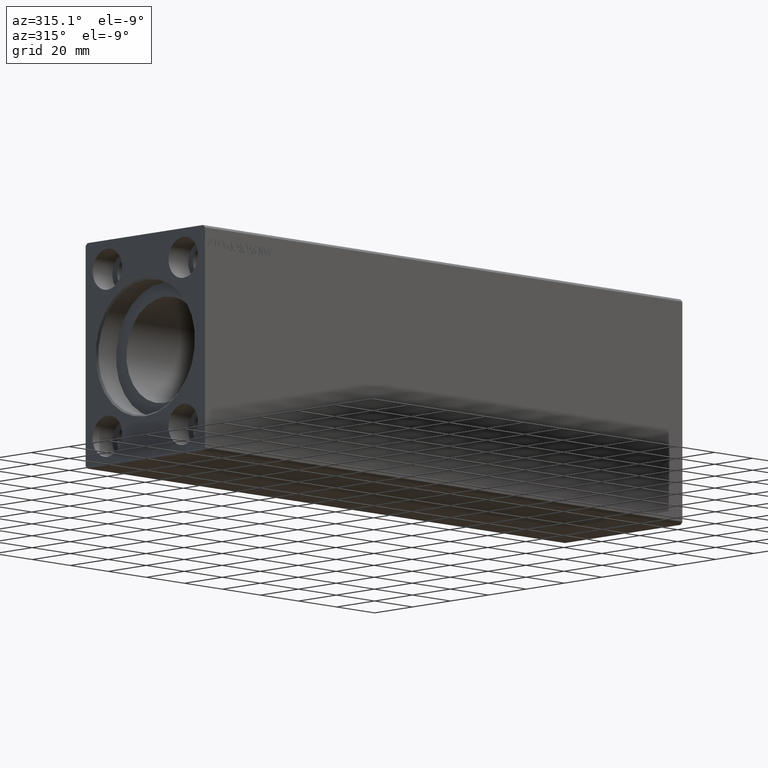
[diagram: clean part render]
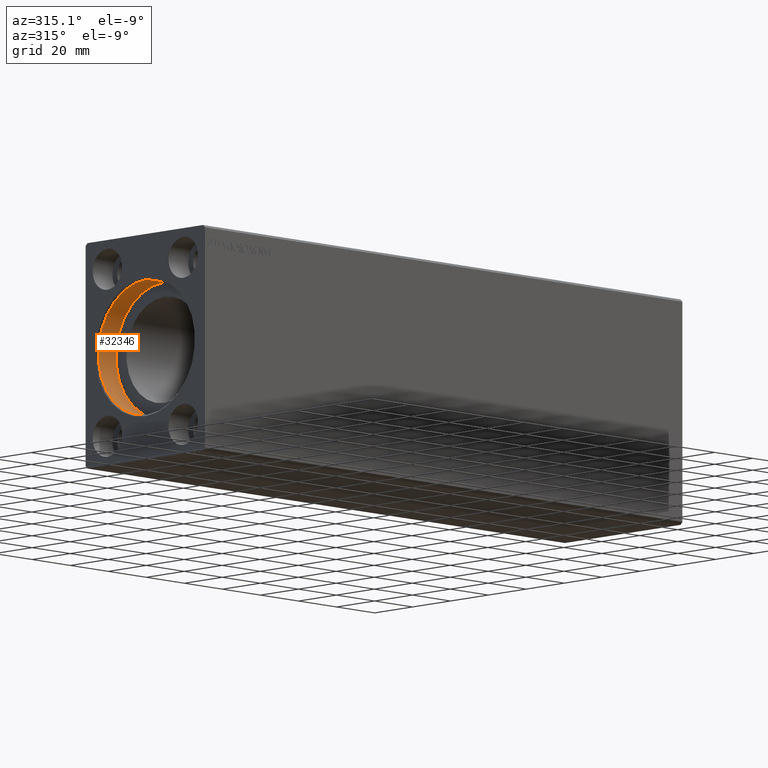
[diagram: same view with one face highlighted and labeled with its STEP entity id]
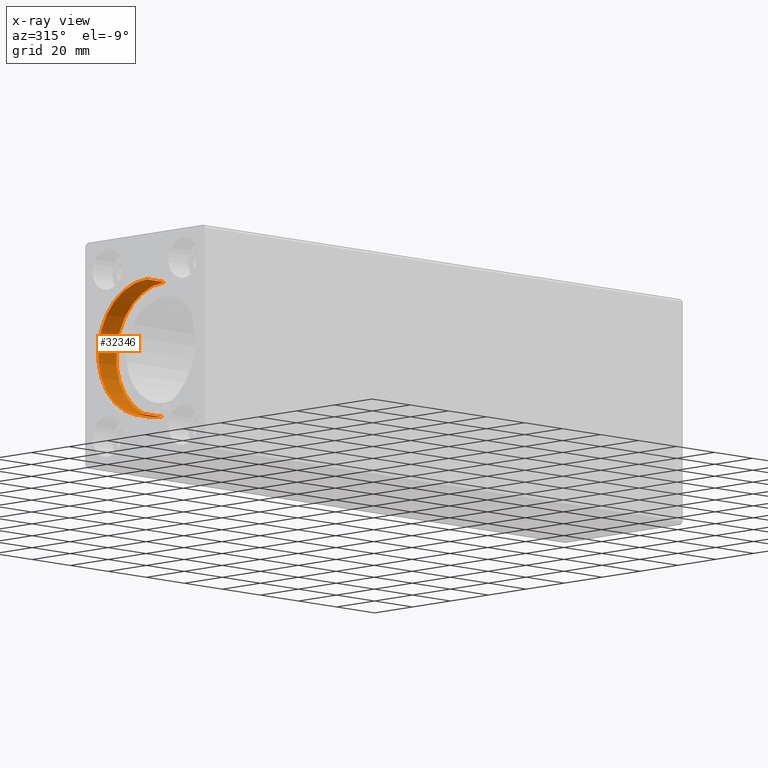
[diagram: x-ray of the same camera — body ghosted, the highlighted face saturated]
A machine part, auxiliary view. The second image highlights one B-rep face of the part: STEP entity #32346.
The next image is the same camera in x-ray: the body ghosted, the highlighted face saturated — about 0% of this face is hidden behind the body in this view.
In plain terms, the highlighted cylindrical surface (partial cylindrical patch) has radius 25.5 mm, axis along (-1, -0, -0).
Its self-contained STEP definition (entity closure, byte-faithful):
#3110 = DIRECTION ( 'NONE',  ( 0.000000000000000000, 0.000000000000000000, -1.000000000000000000 ) ) ;
#4054 = EDGE_CURVE ( 'NONE', #41658, #38532, #21737, .T. ) ;
#5352 = ORIENTED_EDGE ( 'NONE', *, *, #4054, .T. ) ;
#5562 = CARTESIAN_POINT ( 'NONE',  ( 10.00000000000000000, 0.000000000000000000, 0.000000000000000000 ) ) ;
#6577 = AXIS2_PLACEMENT_3D ( 'NONE', #5562, #22895, #12014 ) ;
#7028 = CARTESIAN_POINT ( 'NONE',  ( 0.7000000000000339284, 0.000000000000000000, 25.50000000000000000 ) ) ;
#7338 = AXIS2_PLACEMENT_3D ( 'NONE', #15358, #37703, #34260 ) ;
#8497 = VERTEX_POINT ( 'NONE', #27492 ) ;
#8547 = ORIENTED_EDGE ( 'NONE', *, *, #25824, .F. ) ;
#8635 = CARTESIAN_POINT ( 'NONE',  ( 10.00000000000000000, 0.000000000000000000, 25.50000000000000000 ) ) ;
#8844 = CARTESIAN_POINT ( 'NONE',  ( 10.00000000000000000, 0.000000000000000000, 25.50000000000000000 ) ) ;
#11800 = FACE_OUTER_BOUND ( 'NONE', #29482, .T. ) ;
#12014 = DIRECTION ( 'NONE',  ( 0.000000000000000000, 0.000000000000000000, 1.000000000000000000 ) ) ;
#12275 = DIRECTION ( 'NONE',  ( -1.000000000000000000, -0.000000000000000000, -0.000000000000000000 ) ) ;
#12507 = ORIENTED_EDGE ( 'NONE', *, *, #34103, .F. ) ;
#12786 = CARTESIAN_POINT ( 'NONE',  ( 0.7000000000000339284, 0.000000000000000000, 0.000000000000000000 ) ) ;
#13232 = CYLINDRICAL_SURFACE ( 'NONE', #6577, 25.50000000000000000 ) ;
#15358 = CARTESIAN_POINT ( 'NONE',  ( 10.00000000000000000, 0.000000000000000000, 0.000000000000000000 ) ) ;
#15627 = CIRCLE ( 'NONE', #39631, 25.50000000000000000 ) ;
#17109 = CARTESIAN_POINT ( 'NONE',  ( 10.00000000000000000, 3.122849337825750222E-15, -25.50000000000000000 ) ) ;
#21056 = CIRCLE ( 'NONE', #7338, 25.50000000000000000 ) ;
#21322 = VECTOR ( 'NONE', #12275, 1000.000000000000000 ) ;
#21737 = LINE ( 'NONE', #8844, #21322 ) ;
#22323 = CARTESIAN_POINT ( 'NONE',  ( 10.00000000000000000, 3.122849337825750222E-15, -25.50000000000000000 ) ) ;
#22895 = DIRECTION ( 'NONE',  ( -1.000000000000000000, -0.000000000000000000, -0.000000000000000000 ) ) ;
#23879 = DIRECTION ( 'NONE',  ( -1.000000000000000000, 0.000000000000000000, 0.000000000000000000 ) ) ;
#25824 = EDGE_CURVE ( 'NONE', #28834, #8497, #31970, .T. ) ;
#27381 = DIRECTION ( 'NONE',  ( -1.000000000000000000, -0.000000000000000000, -0.000000000000000000 ) ) ;
#27492 = CARTESIAN_POINT ( 'NONE',  ( 0.7000000000000339284, 3.122849337825750222E-15, -25.50000000000000000 ) ) ;
#28834 = VERTEX_POINT ( 'NONE', #17109 ) ;
#28931 = ORIENTED_EDGE ( 'NONE', *, *, #37320, .T. ) ;
#29482 = EDGE_LOOP ( 'NONE', ( #8547, #12507, #5352, #28931 ) ) ;
#31970 = LINE ( 'NONE', #22323, #40878 ) ;
#32346 = ADVANCED_FACE ( 'NONE', ( #11800 ), #13232, .F. ) ;
#34103 = EDGE_CURVE ( 'NONE', #41658, #28834, #21056, .T. ) ;
#34260 = DIRECTION ( 'NONE',  ( 0.000000000000000000, 0.000000000000000000, 1.000000000000000000 ) ) ;
#37320 = EDGE_CURVE ( 'NONE', #38532, #8497, #15627, .T. ) ;
#37703 = DIRECTION ( 'NONE',  ( -1.000000000000000000, 0.000000000000000000, 0.000000000000000000 ) ) ;
#38532 = VERTEX_POINT ( 'NONE', #7028 ) ;
#39631 = AXIS2_PLACEMENT_3D ( 'NONE', #12786, #23879, #3110 ) ;
#40878 = VECTOR ( 'NONE', #27381, 1000.000000000000000 ) ;
#41658 = VERTEX_POINT ( 'NONE', #8635 ) ;